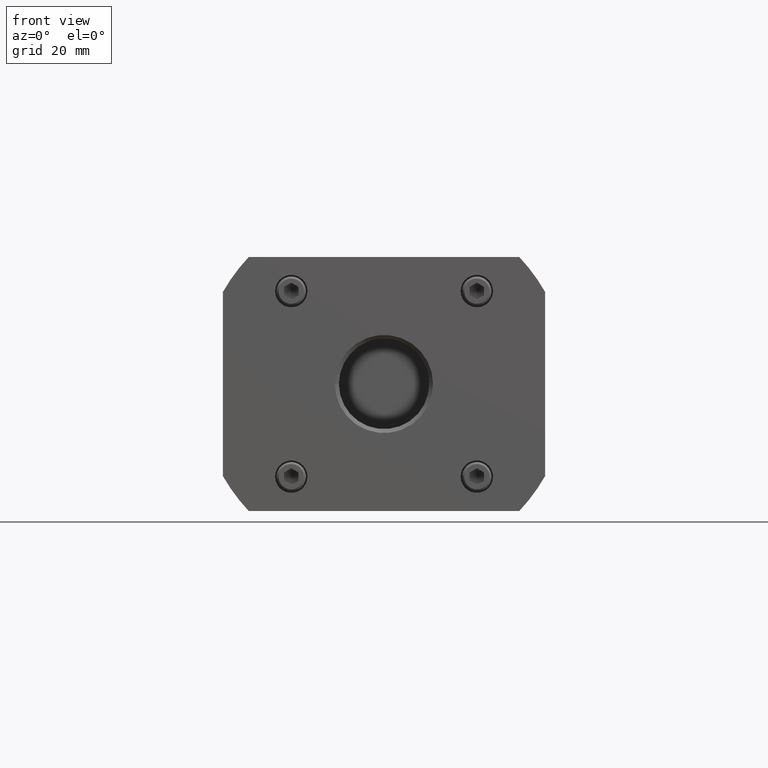
[diagram: clean part render]
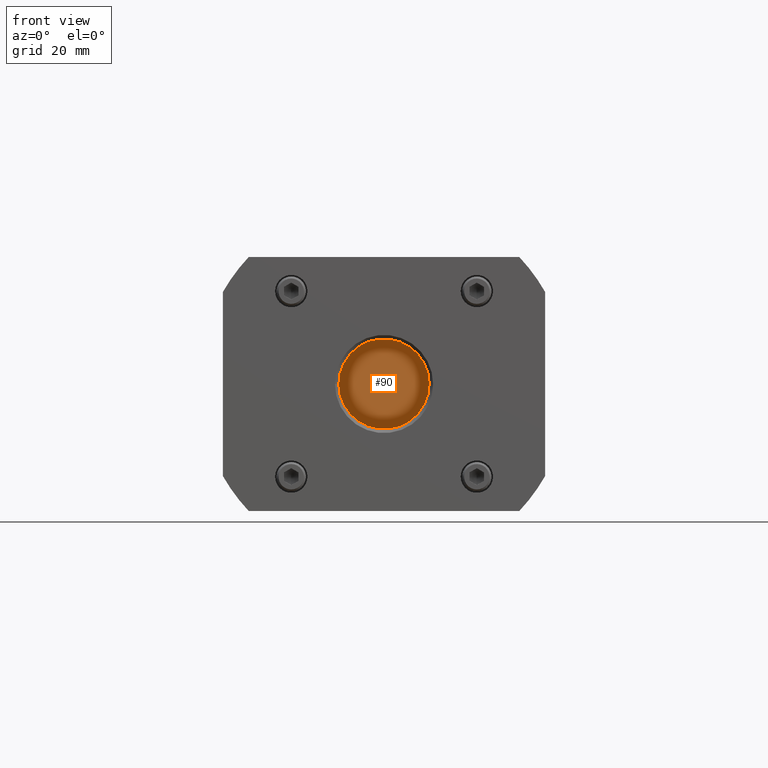
[diagram: same view with one face highlighted and labeled with its STEP entity id]
A machine part, front view. The second image highlights one B-rep face of the part: STEP entity #90.
In plain terms, the highlighted planar face has unit normal (0, 1, 0).
Its self-contained STEP definition (entity closure, byte-faithful):
#74=CARTESIAN_POINT('',(-2.997602E-016,0.600000000000000,1.720464E-016));
#75=DIRECTION('',(0.0,1.0,0.0));
#76=DIRECTION('',(0.0,0.0,1.0));
#77=AXIS2_PLACEMENT_3D('',#74,#75,#76);
#78=PLANE('',#77);
#79=CARTESIAN_POINT('',(-0.578125000000000,0.600000000000000,1.255458E-016));
#80=VERTEX_POINT('',#79);
#81=CARTESIAN_POINT('',(-2.997602E-016,0.600000000000000,1.720464E-016));
#82=DIRECTION('',(0.0,1.0,0.0));
#83=DIRECTION('',(-1.0,0.0,0.0));
#84=AXIS2_PLACEMENT_3D('',#81,#82,#83);
#85=CIRCLE('',#84,0.578125000000000);
#86=EDGE_CURVE('',#80,#80,#85,.T.);
#87=ORIENTED_EDGE('',*,*,#86,.F.);
#88=EDGE_LOOP('',(#87));
#89=FACE_OUTER_BOUND('',#88,.T.);
#90=ADVANCED_FACE('',(#89),#78,.F.);